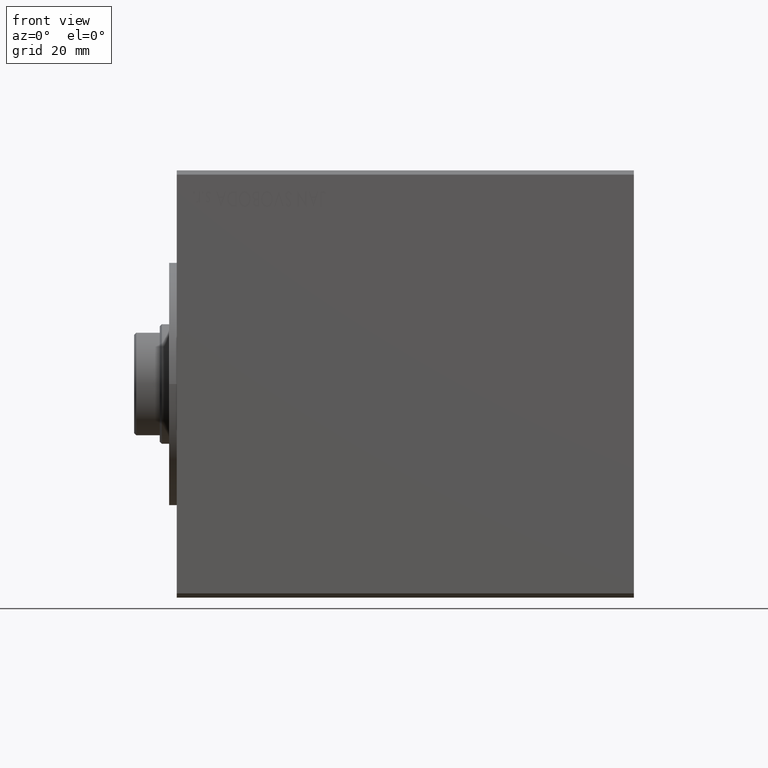
[diagram: clean part render]
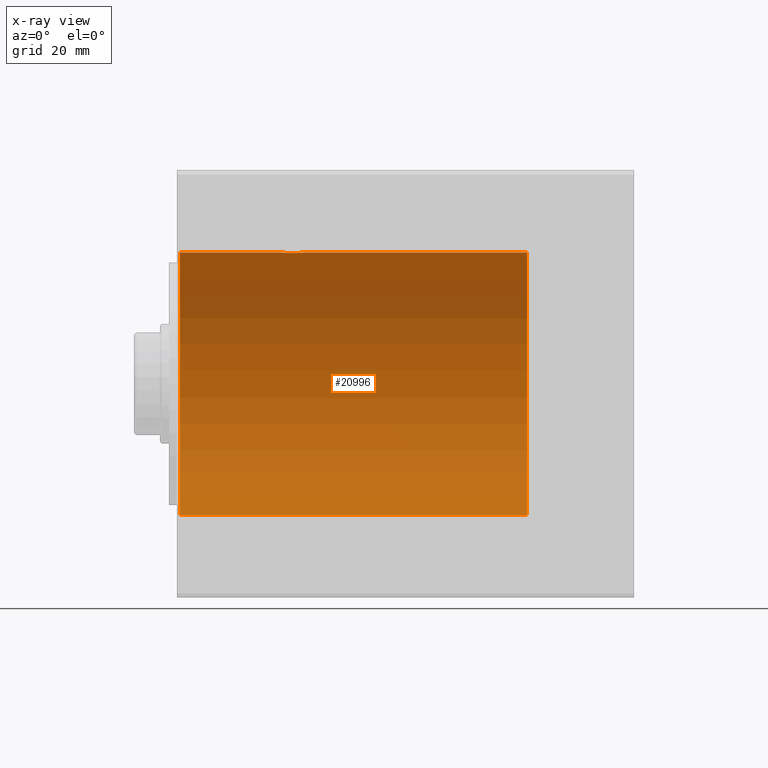
[diagram: x-ray — body ghosted, one internal face saturated and labeled with its STEP entity id]
A machine part, front view, then the same camera in x-ray: the body is ghosted and one INTERNAL B-rep face — a face not visible from any outside direction — is saturated and labeled: STEP entity #20996.
In plain terms, the highlighted cylindrical surface (partial cylindrical patch) has radius 30.75 mm, axis along (-1, -0, -0).
Its self-contained STEP definition (entity closure, byte-faithful):
#33 = ORIENTED_EDGE ( 'NONE', *, *, #3457, .T. ) ;
#277 = VERTEX_POINT ( 'NONE', #7740 ) ;
#414 = VERTEX_POINT ( 'NONE', #12395 ) ;
#996 = CARTESIAN_POINT ( 'NONE',  ( 29.18711129418224814, 1.676704449572973710, 30.70461774079380035 ) ) ;
#1435 = CARTESIAN_POINT ( 'NONE',  ( 29.47120707618788416, 1.219888542165103784, 30.72624496289407503 ) ) ;
#2246 = CARTESIAN_POINT ( 'NONE',  ( 0.6999999999999922951, 0.000000000000000000, 0.000000000000000000 ) ) ;
#3457 = EDGE_CURVE ( 'NONE', #277, #38633, #35268, .T. ) ;
#5068 = CARTESIAN_POINT ( 'NONE',  ( 82.00000000000000000, 3.765788907378111328E-15, -30.75000000000000355 ) ) ;
#5390 = CARTESIAN_POINT ( 'NONE',  ( 24.24999999999999645, -1.738333890745021614E-23, 30.75000000000000355 ) ) ;
#5664 = CARTESIAN_POINT ( 'NONE',  ( 25.62098215118124855, 2.385980704247410600, 30.65745519818104015 ) ) ;
#6157 = ORIENTED_EDGE ( 'NONE', *, *, #8421, .F. ) ;
#6314 = CIRCLE ( 'NONE', #36911, 30.75000000000000355 ) ;
#6476 = EDGE_CURVE ( 'NONE', #15706, #277, #17234, .T. ) ;
#7740 = CARTESIAN_POINT ( 'NONE',  ( 0.6999999999999922951, 0.000000000000000000, 30.75000000000000355 ) ) ;
#7890 = CARTESIAN_POINT ( 'NONE',  ( 29.60930076785698262, 0.8868720153256465233, 30.73765956613339156 ) ) ;
#8109 = CARTESIAN_POINT ( 'NONE',  ( 29.74999999999999645, 0.1817965992658026608, 30.75000000000000355 ) ) ;
#8421 = EDGE_CURVE ( 'NONE', #414, #38633, #31377, .T. ) ;
#8913 = DIRECTION ( 'NONE',  ( -1.000000000000000000, 0.000000000000000000, 0.000000000000000000 ) ) ;
#9054 = VECTOR ( 'NONE', #35361, 1000.000000000000000 ) ;
#9286 = DIRECTION ( 'NONE',  ( -1.000000000000000000, -0.000000000000000000, -0.000000000000000000 ) ) ;
#9421 = CARTESIAN_POINT ( 'NONE',  ( 24.92738397445565113, 1.816515744529477727, 30.69656844555823483 ) ) ;
#10642 = EDGE_CURVE ( 'NONE', #11154, #27834, #38369, .T. ) ;
#11154 = VERTEX_POINT ( 'NONE', #37347 ) ;
#11665 = CARTESIAN_POINT ( 'NONE',  ( 27.35896697165791025, 2.732472593300573571, 30.62837491906849152 ) ) ;
#12114 = CARTESIAN_POINT ( 'NONE',  ( 26.82152894269652421, 2.750064646071585628, 30.62677985761258270 ) ) ;
#12332 = CARTESIAN_POINT ( 'NONE',  ( 24.61448666461528134, 1.379821959382637298, 30.71938825348611601 ) ) ;
#12395 = CARTESIAN_POINT ( 'NONE',  ( 82.00000000000000000, 3.765788907378111328E-15, -30.75000000000000355 ) ) ;
#12556 = VECTOR ( 'NONE', #35022, 1000.000000000000000 ) ;
#12634 = DIRECTION ( 'NONE',  ( 0.000000000000000000, 0.000000000000000000, 1.000000000000000000 ) ) ;
#13203 = B_SPLINE_CURVE_WITH_KNOTS ( 'NONE', 3,
 ( #15471, #8109, #18821, #29050, #7890, #1435, #21713, #996, #35292, #42206, #35967, #39079, #25706, #35743, #14588, #11665, #28149, #12114, #39297, #25261, #29706, #33059, #5664, #29486, #39514, #9421, #26137, #12332, #16356, #25924, #23483, #22812, #36405, #42866 ),
 .UNSPECIFIED., .F., .F.,
 ( 4, 2, 2, 2, 2, 2, 2, 2, 2, 2, 2, 2, 2, 2, 2, 2, 4 ),
 ( 1.754063542264071827E-18, 0.0005376280065243153319, 0.001075256013048628929, 0.001612884019572942418, 0.002150512026097256123, 0.002688140032621569829, 0.003225768039145883101, 0.003763396045670196807, 0.004301024052194510512, 0.004838652058718823784, 0.005376280065243137923, 0.005913908071767451195, 0.006451536078291764467, 0.006989164084816078606, 0.007526792091340391878, 0.008064420097864705150, 0.008602048104389019290 ),
 .UNSPECIFIED. ) ;
#14588 = CARTESIAN_POINT ( 'NONE',  ( 27.71402624436482043, 2.661847156062550734, 30.63459362181787071 ) ) ;
#15471 = CARTESIAN_POINT ( 'NONE',  ( 29.75000000000000355, -1.215633135891748702E-15, 30.75000000000000355 ) ) ;
#15504 = EDGE_CURVE ( 'NONE', #27834, #15706, #13203, .T. ) ;
#15706 = VERTEX_POINT ( 'NONE', #5390 ) ;
#16356 = CARTESIAN_POINT ( 'NONE',  ( 24.52836494081095253, 1.219026836736944563, 30.72627948934641395 ) ) ;
#17017 = DIRECTION ( 'NONE',  ( -1.000000000000000000, 0.000000000000000000, 0.000000000000000000 ) ) ;
#17234 = LINE ( 'NONE', #41055, #12556 ) ;
#17461 = CARTESIAN_POINT ( 'NONE',  ( 82.00000000000000000, 0.000000000000000000, 30.75000000000000355 ) ) ;
#18821 = CARTESIAN_POINT ( 'NONE',  ( 29.73215028602258414, 0.3605368192414490913, 30.74838910129779990 ) ) ;
#19661 = ORIENTED_EDGE ( 'NONE', *, *, #6476, .T. ) ;
#20757 = EDGE_LOOP ( 'NONE', ( #6157, #34702, #40577, #33615, #19661, #33 ) ) ;
#20996 = ADVANCED_FACE ( 'NONE', ( #30025 ), #30251, .F. ) ;
#21713 = CARTESIAN_POINT ( 'NONE',  ( 29.38671523160656918, 1.377818575711103666, 30.71948086136731604 ) ) ;
#22812 = CARTESIAN_POINT ( 'NONE',  ( 24.26799279059056502, 0.3618713211330360502, 30.74837614262355601 ) ) ;
#23481 = CARTESIAN_POINT ( 'NONE',  ( 82.00000000000000000, 0.000000000000000000, 0.000000000000000000 ) ) ;
#23483 = CARTESIAN_POINT ( 'NONE',  ( 24.33834917805526388, 0.7144432429273962493, 30.74220481868460908 ) ) ;
#25261 = CARTESIAN_POINT ( 'NONE',  ( 26.28644877161724835, 2.661896426018130590, 30.63458913051622901 ) ) ;
#25706 = CARTESIAN_POINT ( 'NONE',  ( 28.21835504194290323, 2.471879858796036000, 30.65056353095131314 ) ) ;
#25741 = AXIS2_PLACEMENT_3D ( 'NONE', #43164, #9286, #12634 ) ;
#25924 = CARTESIAN_POINT ( 'NONE',  ( 24.39036279262829510, 0.8858893499746797184, 30.73768823034217590 ) ) ;
#26137 = CARTESIAN_POINT ( 'NONE',  ( 24.81362611203491042, 1.677602972969852502, 30.70456597271972399 ) ) ;
#26909 = CARTESIAN_POINT ( 'NONE',  ( 29.75000000000000355, -1.215633135891748702E-15, 30.75000000000000355 ) ) ;
#26925 = CARTESIAN_POINT ( 'NONE',  ( 0.6999999999999922951, 3.765788907378111328E-15, -30.75000000000000355 ) ) ;
#27834 = VERTEX_POINT ( 'NONE', #26909 ) ;
#28149 = CARTESIAN_POINT ( 'NONE',  ( 27.18045774714419949, 2.749934995115975056, 30.62679149905965303 ) ) ;
#28296 = DIRECTION ( 'NONE',  ( 0.000000000000000000, 0.000000000000000000, -1.000000000000000000 ) ) ;
#29050 = CARTESIAN_POINT ( 'NONE',  ( 29.66222841056809045, 0.7121600054805734548, 30.74225507748953490 ) ) ;
#29486 = CARTESIAN_POINT ( 'NONE',  ( 25.32308228194106903, 2.186902173226254575, 30.67229893624304538 ) ) ;
#29706 = CARTESIAN_POINT ( 'NONE',  ( 26.11497421179292644, 2.609925729978508357, 30.63911829583151203 ) ) ;
#30025 = FACE_OUTER_BOUND ( 'NONE', #20757, .T. ) ;
#30251 = CYLINDRICAL_SURFACE ( 'NONE', #25741, 30.75000000000000355 ) ;
#30385 = VECTOR ( 'NONE', #31042, 1000.000000000000000 ) ;
#30605 = DIRECTION ( 'NONE',  ( 0.000000000000000000, 0.000000000000000000, 1.000000000000000000 ) ) ;
#31042 = DIRECTION ( 'NONE',  ( -1.000000000000000000, -0.000000000000000000, -0.000000000000000000 ) ) ;
#31377 = LINE ( 'NONE', #5068, #9054 ) ;
#33059 = CARTESIAN_POINT ( 'NONE',  ( 25.78190752023395049, 2.472090951509023693, 30.65054728042271748 ) ) ;
#33615 = ORIENTED_EDGE ( 'NONE', *, *, #15504, .T. ) ;
#34702 = ORIENTED_EDGE ( 'NONE', *, *, #38055, .F. ) ;
#35022 = DIRECTION ( 'NONE',  ( -1.000000000000000000, -0.000000000000000000, -0.000000000000000000 ) ) ;
#35268 = CIRCLE ( 'NONE', #35991, 30.75000000000000355 ) ;
#35292 = CARTESIAN_POINT ( 'NONE',  ( 29.07099145538889573, 1.818144178373285902, 30.69646538428344940 ) ) ;
#35361 = DIRECTION ( 'NONE',  ( -1.000000000000000000, -0.000000000000000000, -0.000000000000000000 ) ) ;
#35743 = CARTESIAN_POINT ( 'NONE',  ( 27.88743776773265282, 2.609029178248277958, 30.63919387889069057 ) ) ;
#35967 = CARTESIAN_POINT ( 'NONE',  ( 28.67894148793862286, 2.185487030067574388, 30.67240299995767927 ) ) ;
#35991 = AXIS2_PLACEMENT_3D ( 'NONE', #2246, #8913, #28296 ) ;
#36405 = CARTESIAN_POINT ( 'NONE',  ( 24.25000000000000000, 0.1795234896238574740, 30.75000000000001421 ) ) ;
#36911 = AXIS2_PLACEMENT_3D ( 'NONE', #23481, #17017, #30605 ) ;
#37347 = CARTESIAN_POINT ( 'NONE',  ( 82.00000000000000000, 0.000000000000000000, 30.75000000000000355 ) ) ;
#38055 = EDGE_CURVE ( 'NONE', #11154, #414, #6314, .T. ) ;
#38369 = LINE ( 'NONE', #17461, #30385 ) ;
#38633 = VERTEX_POINT ( 'NONE', #26925 ) ;
#39079 = CARTESIAN_POINT ( 'NONE',  ( 28.37830965063743349, 2.386516412152837496, 30.65741670077456860 ) ) ;
#39297 = CARTESIAN_POINT ( 'NONE',  ( 26.63923044935824080, 2.732159085724032099, 30.62840267641599823 ) ) ;
#39514 = CARTESIAN_POINT ( 'NONE',  ( 25.18420326566727141, 2.073245971671790588, 30.68029815572058538 ) ) ;
#40577 = ORIENTED_EDGE ( 'NONE', *, *, #10642, .T. ) ;
#41055 = CARTESIAN_POINT ( 'NONE',  ( 82.00000000000000000, 0.000000000000000000, 30.75000000000000355 ) ) ;
#42206 = CARTESIAN_POINT ( 'NONE',  ( 28.81735337686279053, 2.071685440710498316, 30.68039691360939258 ) ) ;
#42866 = CARTESIAN_POINT ( 'NONE',  ( 24.24999999999999645, -1.738333890745021614E-23, 30.75000000000000355 ) ) ;
#43164 = CARTESIAN_POINT ( 'NONE',  ( 82.00000000000000000, 0.000000000000000000, 0.000000000000000000 ) ) ;